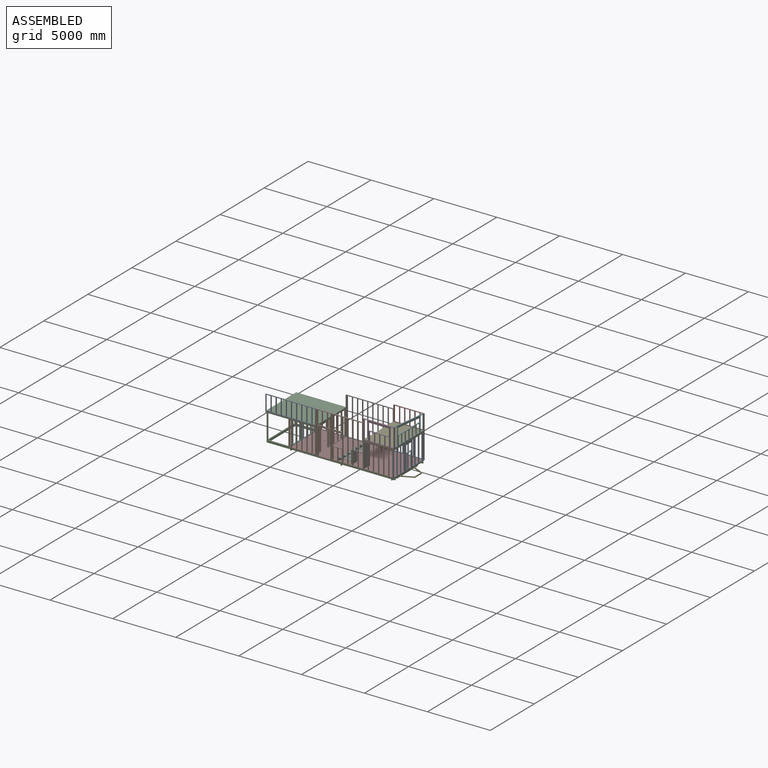
[diagram: assembled view]
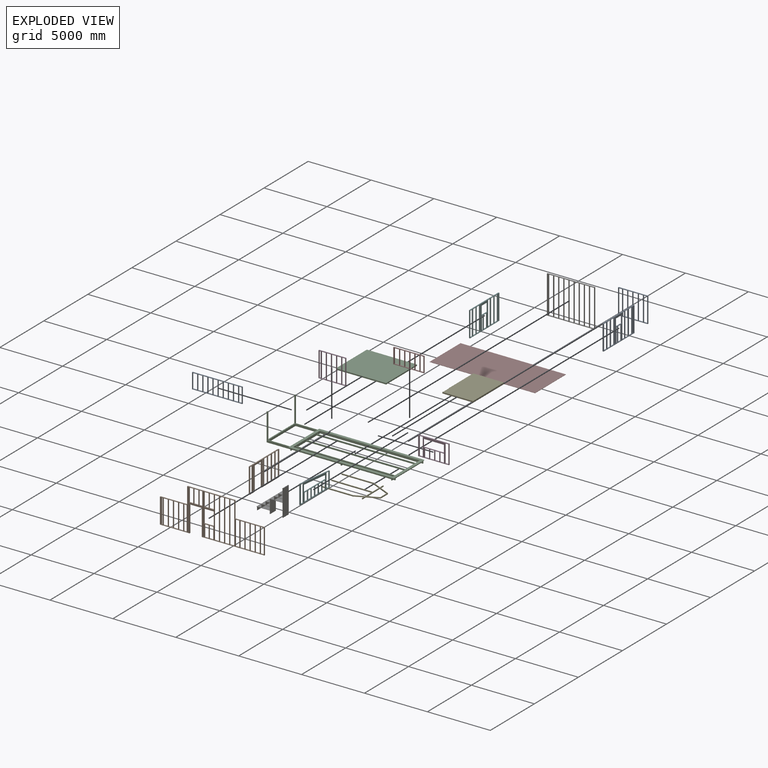
[diagram: exploded view]
GUIDED TOUR — MATED ASSEMBLY (Onshape document c8c15f16987128ea0dcd9a39, AutoMate assembly c8c15f16987128ea0dcd9a39_2c017c27b268a495aacf960a_6606924da4c3053219696071_default)

This assembly has 17 components, labeled P0..P16 below (a component is one placed occurrence of a part; the same part can appear more than once), held together by 16 mates. A mate is a constraint between two components; its type names the relative motion it leaves free:
  FASTENED — locks the two components together rigidly (no relative motion).
Axis/direction vectors are unit vectors and 'through' points are millimeter coordinates, both in the assembly's world frame.

MATES
  1. FASTENED "Fastened 14": P16 <-> P2, direction (1.000, 0.000, 0.000) through (-7276.64, 3408.06, 1241.33) mm
  2. FASTENED "Fastened 12": P4 <-> P14, direction (0.000, 1.000, 0.000) through (-1472.74, 3827.16, 1241.33) mm
  3. FASTENED "Fastened 3": P8 <-> P7, direction (0.000, -1.000, 0.000) through (940.26, 5160.66, -866.87) mm
  4. FASTENED "Fastened 7": P4 <-> P11, direction (1.000, 0.000, 0.000) through (-278.94, 3408.06, 1241.33) mm
  5. FASTENED "Fastened 8": P9 <-> P1, direction (1.000, 0.000, 0.000) through (-5282.74, 3496.96, 1139.73) mm
  6. FASTENED "Fastened 1": P12 <-> P10, direction (0.000, -1.000, 0.000) through (787.86, 5160.66, -1076.42) mm
  7. FASTENED "Fastened 13": P0 <-> P8, direction (0.000, 0.000, -1.000) through (851.36, 6913.26, 136.43) mm
  8. FASTENED "Fastened 11": P4 <-> P13, direction (0.000, -1.000, 0.000) through (940.26, 5160.66, 1241.33) mm
  9. FASTENED "Fastened 15": P5 <-> P3, direction (0.000, 0.000, -1.000) through (-7441.74, 6824.36, 136.43) mm
  10. FASTENED "Fastened 16": P6 <-> P0, direction (0.000, 1.000, 0.000) through (-1498.14, 6868.81, -866.87) mm
  11. FASTENED "Fastened 2": P7 <-> P10, direction (0.000, -1.000, 0.000) through (711.66, 5160.66, -885.92) mm
  12. FASTENED "Fastened 10": P4 <-> P15, direction (1.000, 0.000, 0.000) through (-278.94, 6913.26, 1241.33) mm
  13. FASTENED "Fastened 9": P2 <-> P9, direction (0.000, 1.000, 0.000) through (-5282.74, 5160.66, 1139.73) mm
  14. FASTENED "Fastened 5": P5 <-> P7, direction (0.000, 1.000, 0.000) through (-7441.74, 5160.66, -866.87) mm
  15. FASTENED "Fastened 4": P1 <-> P8, direction (0.000, 0.000, 1.000) through (851.36, 3408.06, 136.43) mm
  16. FASTENED "Fastened 6": P4 <-> P8, direction (0.000, -1.000, 0.000) through (940.26, 5160.66, 1139.73) mm

ASSEMBLY ORDER
  1. P10 — the base component [order verified]
  2. P7 [order verified]
  3. P3 [order verified]
  4. P9 [order verified]
  5. P14 [order verified]
  6. P5 [order verified]
  7. P4 [order verified]
  8. P2 [order verified]
  9. P1 [order verified]
  10. P12 [order verified]
  11. P16 [order verified]
  12. P6 [order verified]
  13. P13 [order verified]
  14. P11 [order verified]
  15. P15 [order verified]
  16. P8 [order verified]
  17. P0 [order verified]
Order-tag legend:
  [order verified] — this step's position reverses a verified removal order: the component was checked to insert without passing through the ones already placed.

Of the 17 components, 13 carry the full construction recipe — the FeatureScript program that regenerates the part's solid from scratch; the rest are supplied as boundary geometry only.
Because this assembly has more than 12 components, the tour below covers the 12 most significant ones individually (every recipe-attached component first, then the largest by part volume), in assembly order; the remaining 5 are summarized together in a grouped section at the end.
Each toured component is shown spotlighted twice — in the assembled view, then in the exploded view, where a leader line traces a displaced component back to its assembled socket (saturated green if recipe-attached, orange if geometry-only; every other component desaturated gray) — followed by its recipe or geometry summary and the mates that hold it.
NOTE — document 3 of 3 of this assembly tour. The two overview renders and the header above are repeated from document 1; the component sections below continue where the previous document stopped.
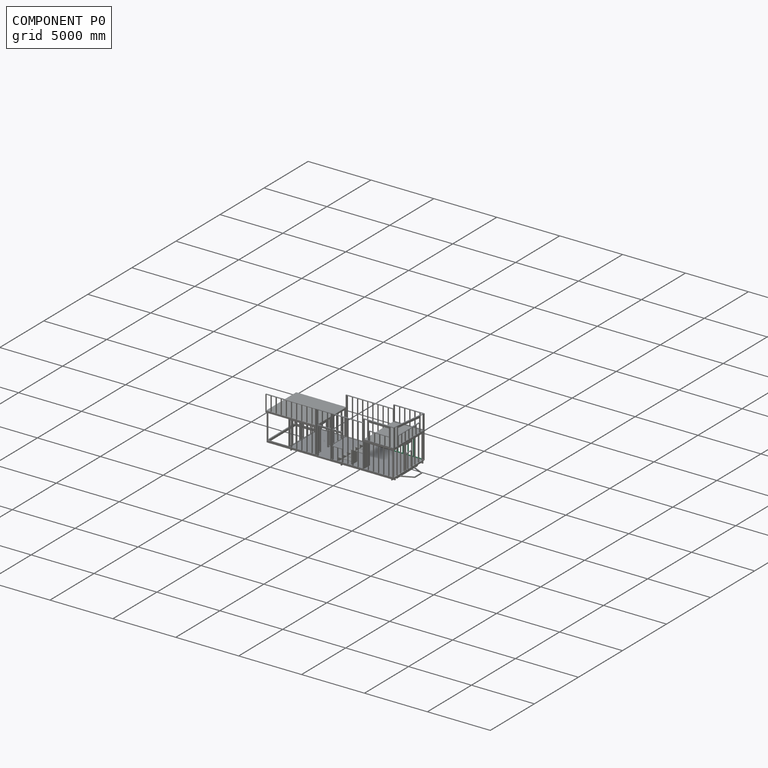
[diagram: component P0 — assembled]
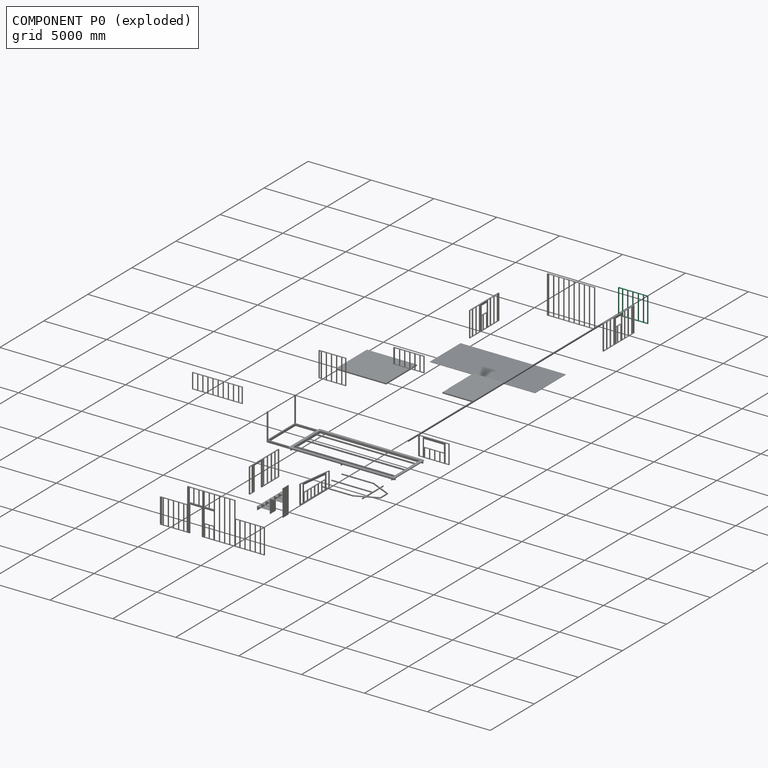
[diagram: component P0 — exploded]
COMPONENT P0 — recipe-attached (CADFS 00191173, mesh-verified: the recipe's output STEP matches this component's geometry to below the mesh-comparison resolution (tessellation chordal tolerance ~4.64 mm)).
Held by: FASTENED mate "Fastened 13" to P8; FASTENED mate "Fastened 16" to P6.
Construction recipe (FeatureScript — the CAD program that rebuilds this solid; sketch coordinates are in the units given by the * unit suffixes, e.g. mm):

FeatureScript 2066;
import(path : "onshape/std/geometry.fs", version : "2066.0");
import(path : "onshape/std/common.fs", version : "2066.0");
const mm = millimeter;
const VERTEX = EntityType.VERTEX;
const EDGE = EntityType.EDGE;
const FACE = EntityType.FACE;
const BODY = EntityType.BODY;
function v(x, y){return vector(x, y);}
function OD(order){return orderDisambiguation(order);}
function OSD(set){return originalSetDisambiguation(set);}
function TD(topology){return topologyDisambiguation(topology);}
function TDD(query){return trueDependencyDisambiguation(query);}
function sQuery(a, b, c) {return sketchEntityQuery(a, b, c);}

annotation { "Feature Type Name" : "Feature", "Feature Type Description" : "" }
export const myFeature = defineFeature(function(context is Context, id is Id, definition is map)
    precondition{}
    {
        {
            var Q0;
            Q0=qCreatedBy(makeId("Top.planeOp"),FACE);
            var sketch = newSketch(context, id + "F0", { "sketchPlane" : qUnion([Q0])});
            skLineSegment(sketch, "E0.bottom", {"start": v(1174.75, -44.45) * mm, "end": v(-1174.75, -44.45) * mm});
            skLineSegment(sketch, "E0.top", {"start": v(1174.75, 44.45) * mm, "end": v(-1174.75, 44.45) * mm});
            skLineSegment(sketch, "E0.left", {"start": v(1174.75, -44.45) * mm, "end": v(1174.75, 44.45) * mm});
            skLineSegment(sketch, "E0.right", {"start": v(-1174.75, -44.45) * mm, "end": v(-1174.75, 44.45) * mm});
            skPoint(sketch, "E0.middle", {"position": v(0, 0) * mm});
            skSolve(sketch);
        }
        {
            var Q0;
            Q0 = qSketchRegion(id + "F0", true);
            extrude(context, id + "F1", {"entities" : qUnion([Q0]), "depth" : 38.1 * mm});
        }
        {
            var Q0;
            Q0=makeQuery(id+"F1.opExtrude","CAP_FACE",FACE,{"disambiguationData":[OSD([sQuery(id+"F0.wireOp",EDGE,"E0.bottom"),sQuery(id+"F0.wireOp",EDGE,"E0.top"),sQuery(id+"F0.wireOp",EDGE,"E0.left"),sQuery(id+"F0.wireOp",EDGE,"E0.right")])],"isStart":false});
            var sketch = newSketch(context, id + "F2", { "sketchPlane" : qUnion([Q0])});
            skLineSegment(sketch, "E1.bottom", {"start": v(-1174.75, 44.45) * mm, "end": v(-1136.65, 44.45) * mm});
            skLineSegment(sketch, "E1.top", {"start": v(-1174.75, -44.45) * mm, "end": v(-1136.65, -44.45) * mm});
            skLineSegment(sketch, "E1.left", {"start": v(-1174.75, 44.45) * mm, "end": v(-1174.75, -44.45) * mm});
            skLineSegment(sketch, "E1.right", {"start": v(-1136.65, 44.45) * mm, "end": v(-1136.65, -44.45) * mm});
            skLineSegment(sketch, "E2.bottom", {"start": v(-857.25, 44.45) * mm, "end": v(-819.15, 44.45) * mm});
            skLineSegment(sketch, "E2.top", {"start": v(-857.25, -44.45) * mm, "end": v(-819.15, -44.45) * mm});
            skLineSegment(sketch, "E2.left", {"start": v(-857.25, 44.45) * mm, "end": v(-857.25, -44.45) * mm});
            skLineSegment(sketch, "E2.right", {"start": v(-819.15, 44.45) * mm, "end": v(-819.15, -44.45) * mm});
            skLineSegment(sketch, "E3.bottom", {"start": v(-450.85, 44.45) * mm, "end": v(-412.75, 44.45) * mm});
            skLineSegment(sketch, "E3.top", {"start": v(-450.85, -44.45) * mm, "end": v(-412.75, -44.45) * mm});
            skLineSegment(sketch, "E3.left", {"start": v(-450.85, 44.45) * mm, "end": v(-450.85, -44.45) * mm});
            skLineSegment(sketch, "E3.right", {"start": v(-412.75, 44.45) * mm, "end": v(-412.75, -44.45) * mm});
            skLineSegment(sketch, "E4.bottom", {"start": v(-44.45, 44.45) * mm, "end": v(-6.35, 44.45) * mm});
            skLineSegment(sketch, "E4.top", {"start": v(-44.45, -44.45) * mm, "end": v(-6.35, -44.45) * mm});
            skLineSegment(sketch, "E4.left", {"start": v(-44.45, 44.45) * mm, "end": v(-44.45, -44.45) * mm});
            skLineSegment(sketch, "E4.right", {"start": v(-6.35, 44.45) * mm, "end": v(-6.35, -44.45) * mm});
            skLineSegment(sketch, "E5.bottom", {"start": v(400.05, 44.45) * mm, "end": v(438.15, 44.45) * mm});
            skLineSegment(sketch, "E5.top", {"start": v(400.05, -44.45) * mm, "end": v(438.15, -44.45) * mm});
            skLineSegment(sketch, "E5.left", {"start": v(400.05, 44.45) * mm, "end": v(400.05, -44.45) * mm});
            skLineSegment(sketch, "E5.right", {"start": v(438.15, 44.45) * mm, "end": v(438.15, -44.45) * mm});
            skLineSegment(sketch, "E6.bottom", {"start": v(806.45, 44.45) * mm, "end": v(844.55, 44.45) * mm});
            skLineSegment(sketch, "E6.top", {"start": v(806.45, -44.45) * mm, "end": v(844.55, -44.45) * mm});
            skLineSegment(sketch, "E6.left", {"start": v(806.45, 44.45) * mm, "end": v(806.45, -44.45) * mm});
            skLineSegment(sketch, "E6.right", {"start": v(844.55, 44.45) * mm, "end": v(844.55, -44.45) * mm});
            skLineSegment(sketch, "E7.bottom", {"start": v(1174.75, 44.45) * mm, "end": v(1136.65, 44.45) * mm});
            skLineSegment(sketch, "E7.top", {"start": v(1174.75, -44.45) * mm, "end": v(1136.65, -44.45) * mm});
            skLineSegment(sketch, "E7.left", {"start": v(1174.75, 44.45) * mm, "end": v(1174.75, -44.45) * mm});
            skLineSegment(sketch, "E7.right", {"start": v(1136.65, 44.45) * mm, "end": v(1136.65, -44.45) * mm});
            skSolve(sketch);
        }
        {
            var Q0;
            Q0 = qSketchRegion(id + "F2", true);
            extrude(context, id + "F3", {"entities" : qUnion([Q0]), "operationType" : NewBodyOperationType.ADD, "depth" : 1930.4 * mm});
        }
        {
            var Q0;
            Q0=makeQuery(id+"F3.boolean.opBoolean","MERGE",FACE,{"derivedFrom":[makeQuery(id+"F1.opExtrude","SWEPT_FACE",FACE,{"disambiguationData":[OSD([sQuery(id+"F0.wireOp",EDGE,"E0.bottom")])]}),makeQuery(id+"F3.opExtrude","SWEPT_FACE",FACE,{"disambiguationData":[OSD([sQuery(id+"F2.wireOp",EDGE,"E1.top")])]}),makeQuery(id+"F3.opExtrude","SWEPT_FACE",FACE,{"disambiguationData":[OSD([sQuery(id+"F2.wireOp",EDGE,"E2.top")])]}),makeQuery(id+"F3.opExtrude","SWEPT_FACE",FACE,{"disambiguationData":[OSD([sQuery(id+"F2.wireOp",EDGE,"E3.top")])]}),makeQuery(id+"F3.opExtrude","SWEPT_FACE",FACE,{"disambiguationData":[OSD([sQuery(id+"F2.wireOp",EDGE,"E4.top")])]}),makeQuery(id+"F3.opExtrude","SWEPT_FACE",FACE,{"disambiguationData":[OSD([sQuery(id+"F2.wireOp",EDGE,"E5.top")])]}),makeQuery(id+"F3.opExtrude","SWEPT_FACE",FACE,{"disambiguationData":[OSD([sQuery(id+"F2.wireOp",EDGE,"E6.top")])]}),makeQuery(id+"F3.opExtrude","SWEPT_FACE",FACE,{"disambiguationData":[OSD([sQuery(id+"F2.wireOp",EDGE,"E7.top")])]})]});
            var sketch = newSketch(context, id + "F4", { "sketchPlane" : qUnion([Q0])});
            skLineSegment(sketch, "E8.bottom", {"start": v(1174.75, 1968.5) * mm, "end": v(-1174.75, 1968.5) * mm});
            skLineSegment(sketch, "E8.top", {"start": v(1174.75, 2006.6) * mm, "end": v(-1174.75, 2006.6) * mm});
            skLineSegment(sketch, "E8.left", {"start": v(1174.75, 1968.5) * mm, "end": v(1174.75, 2006.6) * mm});
            skLineSegment(sketch, "E8.right", {"start": v(-1174.75, 1968.5) * mm, "end": v(-1174.75, 2006.6) * mm});
            skSolve(sketch);
        }
        {
            var Q0;
            Q0 = qSketchRegion(id + "F4", true);
            extrude(context, id + "F5", {"entities" : qUnion([Q0]), "operationType" : NewBodyOperationType.ADD, "oppositeDirection" : true, "depth" : 88.9 * mm});
        }
    });
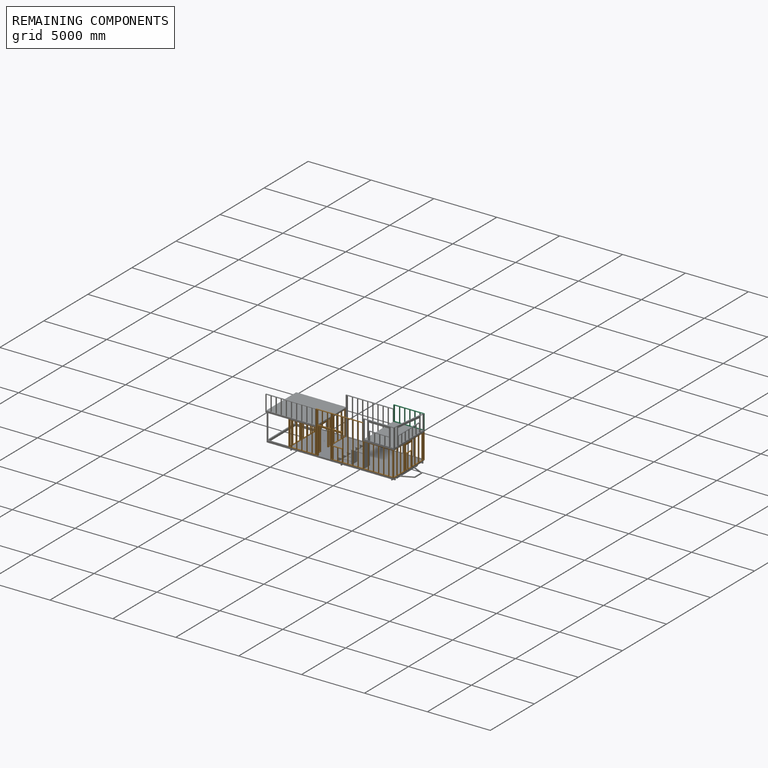
[diagram: remaining components — assembled]
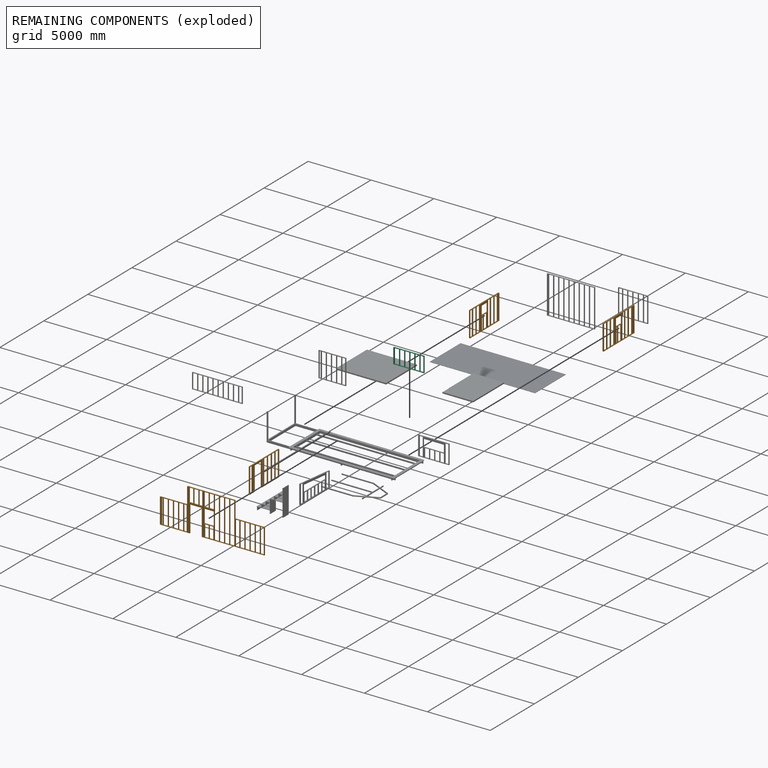
[diagram: remaining components — exploded]
REMAINING COMPONENTS (grouped) — the 5 components below fall outside the per-component tour by the significance rule stated above; both spotlight views highlight the whole group.
  P9: bounding box 3327.4 x 2006.6 x 88.9 mm, volume 97216257 mm^3. Held by: FASTENED mate "Fastened 8" to P1; FASTENED mate "Fastened 9" to P2.
  P5: bounding box 3327.4 x 2006.6 x 88.9 mm, volume 112271872 mm^3. Held by: FASTENED mate "Fastened 15" to P3; FASTENED mate "Fastened 5" to P7.
  P1: bounding box 8293.1 x 3327.4 x 88.9 mm, volume 319695232 mm^3. Held by: FASTENED mate "Fastened 8" to P9; FASTENED mate "Fastened 4" to P8.
  P15: bounding box 2438.4 x 1219.2 x 88.9 mm, volume 47489711 mm^3. Recipe-attached (CADFS 00191170; recipe not printed under the significance rule). Held by: FASTENED mate "Fastened 10" to P4.
  P8: bounding box 3505.2 x 2006.6 x 88.9 mm, volume 129019452 mm^3. Held by: FASTENED mate "Fastened 3" to P7; FASTENED mate "Fastened 13" to P0; FASTENED mate "Fastened 4" to P1; FASTENED mate "Fastened 6" to P4.
PROVENANCE & LICENSES
Assembly (occurrences, transforms, mates, per-part STEP geometry): AutoMate dataset, Zenodo record 7776208, CC0.
Construction recipes: CADFS (HuggingFace VladPyatov/CADFS, CC-BY-4.0, layered over the ABC dataset), FeatureScript reconstruction programs keyed by ABC model id.
Join: ABC meta listings map ABC model id -> Onshape documentId; within a shared document, parts are matched by geometric signature (bounding-box dims + volume at 0.1% relative tolerance, exact B-rep face/solid counts).
Verification: 13 of this assembly's 17 components carry a recipe attachment, and every attachment is mesh-verified: the CADFS STEP and the AutoMate member STEP were compared as meshes in their shared local frame (symmetric sampled-point-to-mesh distance); worst across the 13 attachments: below the mesh-comparison resolution (tessellation chordal tolerance ~16.5 mm) on a 11022 mm part.
Renders: orthographic iso camera (az 35 / el 25); the floor grid conveys scale (grid pitch printed in each image; no ruler). In the exploded view each component is displaced by its stored offset vector: the offsets alone carry the explosion direction (mate normal/axis signs are not orientation cues and do not encode it), and separation distances are assigned per mate-chain, not proportionally to assembly-order depth.
